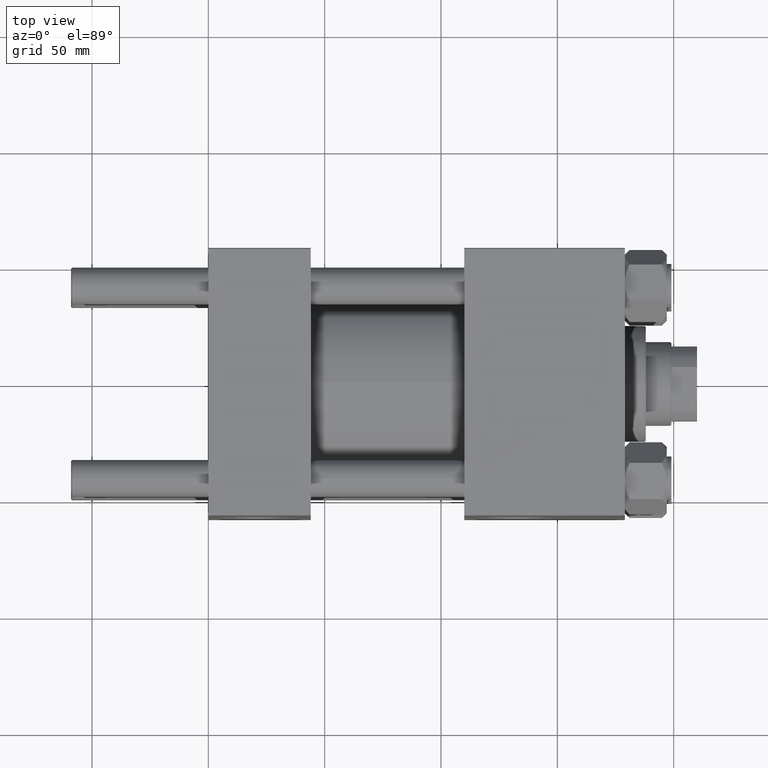
[diagram: clean part render]
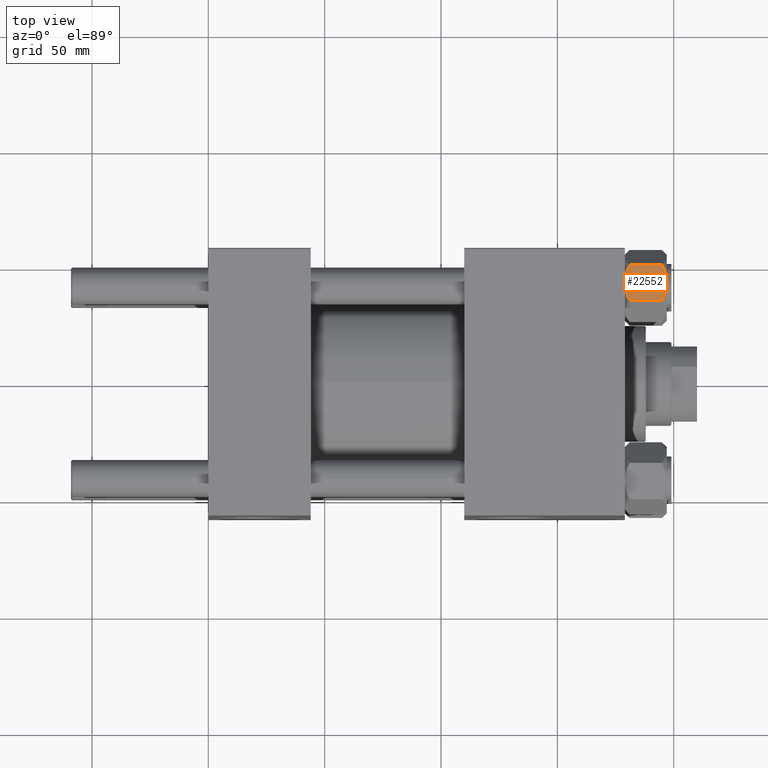
[diagram: same view with one face highlighted and labeled with its STEP entity id]
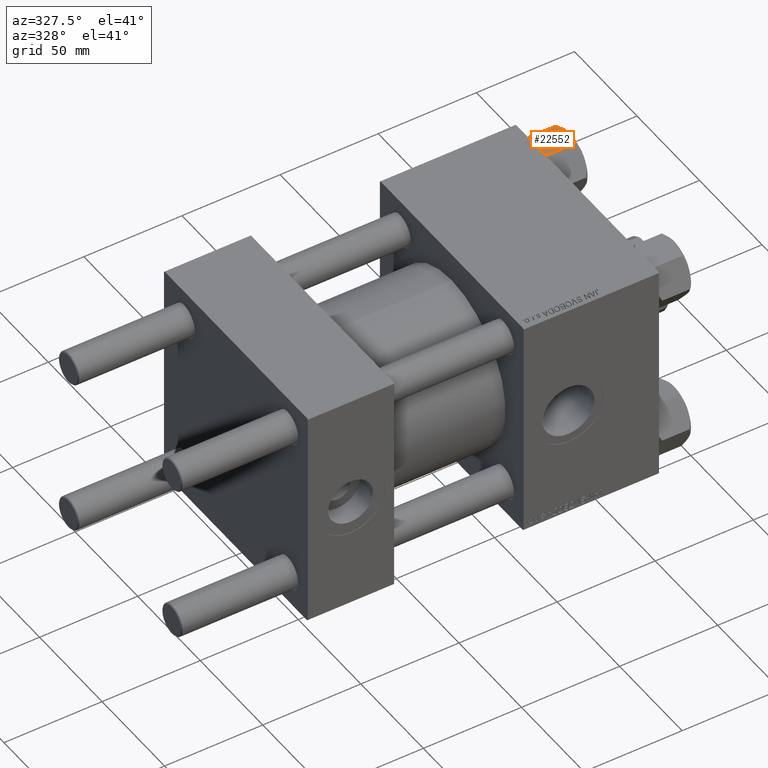
[diagram: same view with one face highlighted and labeled with its STEP entity id]
A machine part, top view. The second image highlights one B-rep face of the part: STEP entity #22552.
A second angle (auxiliary view) of the same face is appended — the face is thin or edge-on in the first view.
In plain terms, the highlighted planar face has unit normal (0, -0.097, -0.9953).
Its self-contained STEP definition (entity closure, byte-faithful):
#637 = CARTESIAN_POINT ( 'NONE',  ( -10.38662926516872531, 9.064464007571846338, -0.2430846701012981670 ) ) ;
#1108 = CARTESIAN_POINT ( 'NONE',  ( -7.810000000000002274, 13.52731680711293549, -18.00000000000000000 ) ) ;
#1386 = CARTESIAN_POINT ( 'NONE',  ( -13.02784502466562877, 4.489744118371585380, -0.1971866459924576653 ) ) ;
#2362 = CARTESIAN_POINT ( 'NONE',  ( -7.903528262322684128, 13.36532110482642111, -2.000000000000000000 ) ) ;
#2661 = CARTESIAN_POINT ( 'NONE',  ( -11.71500000000000341, 6.763658403556464194, 0.000000000000000000 ) ) ;
#3029 = VERTEX_POINT ( 'NONE', #3490 ) ;
#3136 = ORIENTED_EDGE ( 'NONE', *, *, #11314, .F. ) ;
#3490 = CARTESIAN_POINT ( 'NONE',  ( -7.810000000000002274, 13.52731680711293549, -1.999999999999998224 ) ) ;
#3511 = ORIENTED_EDGE ( 'NONE', *, *, #14093, .F. ) ;
#3556 = DIRECTION ( 'NONE',  ( 0.4999999999999998335, 0.8660254037844387076, 0.000000000000000000 ) ) ;
#3804 = CARTESIAN_POINT ( 'NONE',  ( -11.71500000000000341, 6.763658403556464194, -18.00000000000000000 ) ) ;
#5106 = LINE ( 'NONE', #9972, #21332 ) ;
#5777 = LINE ( 'NONE', #36895, #22361 ) ;
#6284 = DIRECTION ( 'NONE',  ( 0.4999999999999998335, 0.8660254037844387076, 0.000000000000000000 ) ) ;
#6472 = B_SPLINE_CURVE_WITH_KNOTS ( 'NONE', 3,
 ( #27209, #7817, #11405, #35835, #637, #23378, #27459, #34851 ),
 .UNSPECIFIED., .F., .F.,
 ( 4, 2, 2, 4 ),
 ( 4.472842641915697111E-07, 0.003945636373369306588, 0.005918230917921864405, 0.007890825462474420487 ),
 .UNSPECIFIED. ) ;
#7641 = PLANE ( 'NONE',  #46586 ) ;
#7817 = CARTESIAN_POINT ( 'NONE',  ( -8.502393313253762130, 12.32805640973647954, -1.411989271640067711 ) ) ;
#8779 = ORIENTED_EDGE ( 'NONE', *, *, #19862, .T. ) ;
#9041 = ORIENTED_EDGE ( 'NONE', *, *, #21708, .F. ) ;
#9305 = ORIENTED_EDGE ( 'NONE', *, *, #44610, .F. ) ;
#9415 = CARTESIAN_POINT ( 'NONE',  ( -7.903528262322684128, 13.36532110482642111, -16.00000000000000000 ) ) ;
#9972 = CARTESIAN_POINT ( 'NONE',  ( -15.62000000000000277, -9.678749765951853952E-16, -16.00000000000000000 ) ) ;
#10000 = LINE ( 'NONE', #24533, #29645 ) ;
#11314 = EDGE_CURVE ( 'NONE', #23517, #37391, #5777, .T. ) ;
#11405 = CARTESIAN_POINT ( 'NONE',  ( -9.114548888011791306, 11.26777185211903110, -0.9142282604026947812 ) ) ;
#11484 = VECTOR ( 'NONE', #14508, 1000.000000000000000 ) ;
#12701 = CARTESIAN_POINT ( 'NONE',  ( -11.71500000000000341, 6.763658403556464194, -18.00000000000000000 ) ) ;
#13705 = VERTEX_POINT ( 'NONE', #30287 ) ;
#13726 = CARTESIAN_POINT ( 'NONE',  ( -8.506059550806625680, 12.32170630002229395, -16.56553707812499354 ) ) ;
#14093 = EDGE_CURVE ( 'NONE', #29388, #32160, #22587, .T. ) ;
#14316 = CARTESIAN_POINT ( 'NONE',  ( -12.04818928091285635, 6.186557640478059561, -17.99999999999999289 ) ) ;
#14508 = DIRECTION ( 'NONE',  ( -0.000000000000000000, -0.000000000000000000, 1.000000000000000000 ) ) ;
#14978 = LINE ( 'NONE', #22622, #41082 ) ;
#16469 = CARTESIAN_POINT ( 'NONE',  ( -14.30591678195076000, 2.276058899034898886, -0.9473872146228137225 ) ) ;
#16781 = CARTESIAN_POINT ( 'NONE',  ( -11.05297796109638675, 7.910314210667877433, -18.00000000000000000 ) ) ;
#18405 = CARTESIAN_POINT ( 'NONE',  ( -13.36540581434587338, 3.905071680002323742, -17.61639331488793303 ) ) ;
#18565 = DIRECTION ( 'NONE',  ( -0.4999999999999998335, -0.8660254037844387076, 0.000000000000000000 ) ) ;
#18593 = LINE ( 'NONE', #37693, #11484 ) ;
#19862 = EDGE_CURVE ( 'NONE', #13705, #32475, #18593, .T. ) ;
#20010 = ORIENTED_EDGE ( 'NONE', *, *, #31578, .F. ) ;
#21065 = CARTESIAN_POINT ( 'NONE',  ( -12.37702203890362895, 5.617002596445053619, -7.928228386300251174E-16 ) ) ;
#21332 = VECTOR ( 'NONE', #36221, 1000.000000000000000 ) ;
#21708 = EDGE_CURVE ( 'NONE', #13705, #29388, #5106, .T. ) ;
#22214 = FACE_OUTER_BOUND ( 'NONE', #28024, .T. ) ;
#22361 = VECTOR ( 'NONE', #6284, 1000.000000000000000 ) ;
#22552 = ADVANCED_FACE ( 'NONE', ( #22214 ), #7641, .F. ) ;
#22587 = B_SPLINE_CURVE_WITH_KNOTS ( 'NONE', 3,
 ( #45918, #50240, #34424, #18405, #26031, #34166, #14316, #3804 ),
 .UNSPECIFIED., .F., .F.,
 ( 4, 2, 2, 4 ),
 ( 4.472842641949058562E-07, 0.003945636373369310924, 0.005918230917921867007, 0.007890825462474422222 ),
 .UNSPECIFIED. ) ;
#22622 = CARTESIAN_POINT ( 'NONE',  ( -15.62000000000000277, -9.678749765951853952E-16, -1.999999999999998224 ) ) ;
#23378 = CARTESIAN_POINT ( 'NONE',  ( -11.04378428799595291, 7.926238119586001218, -0.05089381635301579859 ) ) ;
#23517 = VERTEX_POINT ( 'NONE', #9415 ) ;
#24533 = CARTESIAN_POINT ( 'NONE',  ( -15.62000000000000277, -9.678749765951853952E-16, -1.999999999999998224 ) ) ;
#26031 = CARTESIAN_POINT ( 'NONE',  ( -13.04337073483127973, 4.462852799541082938, -17.75691532989869614 ) ) ;
#26625 = VECTOR ( 'NONE', #28674, 1000.000000000000000 ) ;
#27209 = CARTESIAN_POINT ( 'NONE',  ( -7.903528262322684128, 13.36532110482642111, -2.000000000000000000 ) ) ;
#27459 = CARTESIAN_POINT ( 'NONE',  ( -11.38181071908714870, 7.340759166634867938, -9.266540442962045709E-16 ) ) ;
#28024 = EDGE_LOOP ( 'NONE', ( #9041, #8779, #20010, #31900, #48054, #30228, #36055, #3136, #9305, #3511 ) ) ;
#28241 = CARTESIAN_POINT ( 'NONE',  ( -9.124083218049246824, 11.25125790807802950, -17.05261278537718539 ) ) ;
#28674 = DIRECTION ( 'NONE',  ( -0.000000000000000000, -0.000000000000000000, 1.000000000000000000 ) ) ;
#29251 = CARTESIAN_POINT ( 'NONE',  ( -8.202637790192651934, 12.84724820552770197, -16.29368822085855584 ) ) ;
#29388 = VERTEX_POINT ( 'NONE', #41711 ) ;
#29645 = VECTOR ( 'NONE', #48257, 1000.000000000000000 ) ;
#29845 = DIRECTION ( 'NONE',  ( 0.8660254037844387076, -0.4999999999999998335, 0.000000000000000000 ) ) ;
#30228 = ORIENTED_EDGE ( 'NONE', *, *, #30822, .F. ) ;
#30287 = CARTESIAN_POINT ( 'NONE',  ( -15.62000000000000277, -9.678749765951853952E-16, -16.00000000000000000 ) ) ;
#30822 = EDGE_CURVE ( 'NONE', #3029, #35304, #10000, .T. ) ;
#31578 = EDGE_CURVE ( 'NONE', #45893, #32475, #14978, .T. ) ;
#31900 = ORIENTED_EDGE ( 'NONE', *, *, #48052, .F. ) ;
#31995 = CARTESIAN_POINT ( 'NONE',  ( -14.92394044919337759, 1.205610507090636219, -1.434462921875002683 ) ) ;
#32160 = VERTEX_POINT ( 'NONE', #33899 ) ;
#32475 = VERTEX_POINT ( 'NONE', #43000 ) ;
#32560 = CARTESIAN_POINT ( 'NONE',  ( -7.903528262322684128, 13.36532110482642111, -16.00000000000000000 ) ) ;
#32769 = CARTESIAN_POINT ( 'NONE',  ( -15.52647173767732269, 0.1619957022865083085, -2.000000000000000000 ) ) ;
#33899 = CARTESIAN_POINT ( 'NONE',  ( -11.71500000000000341, 6.763658403556464194, -18.00000000000000000 ) ) ;
#34166 = CARTESIAN_POINT ( 'NONE',  ( -12.38621571200405569, 5.601078687526927169, -17.94910618364698252 ) ) ;
#34424 = CARTESIAN_POINT ( 'NONE',  ( -14.31545111198821374, 2.259544954993896848, -17.08577173959729834 ) ) ;
#34851 = CARTESIAN_POINT ( 'NONE',  ( -11.71500000000000341, 6.763658403556464194, 0.000000000000000000 ) ) ;
#35304 = VERTEX_POINT ( 'NONE', #2362 ) ;
#35828 = CARTESIAN_POINT ( 'NONE',  ( -11.71500000000000341, 6.763658403556464194, 0.000000000000000000 ) ) ;
#35835 = CARTESIAN_POINT ( 'NONE',  ( -10.06459418565412811, 9.622245127110607754, -0.3836066851120605858 ) ) ;
#36055 = ORIENTED_EDGE ( 'NONE', *, *, #41558, .F. ) ;
#36221 = DIRECTION ( 'NONE',  ( 0.4999999999999998335, 0.8660254037844387076, 0.000000000000000000 ) ) ;
#36650 = CARTESIAN_POINT ( 'NONE',  ( -10.40215497533437627, 9.037572688741338567, -17.80281335400754372 ) ) ;
#36895 = CARTESIAN_POINT ( 'NONE',  ( -15.62000000000000277, -9.678749765951853952E-16, -16.00000000000000000 ) ) ;
#37391 = VERTEX_POINT ( 'NONE', #38710 ) ;
#37693 = CARTESIAN_POINT ( 'NONE',  ( -15.62000000000000277, -9.678749765951853952E-16, -18.00000000000000000 ) ) ;
#38710 = CARTESIAN_POINT ( 'NONE',  ( -7.810000000000002274, 13.52731680711293549, -16.00000000000000000 ) ) ;
#39668 = CARTESIAN_POINT ( 'NONE',  ( -13.99051971937273642, 2.822342635978010161, -0.7317196846281152078 ) ) ;
#39969 = CARTESIAN_POINT ( 'NONE',  ( -9.439480280627265074, 10.70497417113491601, -17.26828031537188579 ) ) ;
#41082 = VECTOR ( 'NONE', #18565, 1000.000000000000000 ) ;
#41369 = B_SPLINE_CURVE_WITH_KNOTS ( 'NONE', 3,
 ( #35828, #21065, #1386, #39668, #16469, #31995, #47565, #32769 ),
 .UNSPECIFIED., .F., .F.,
 ( 4, 2, 2, 4 ),
 ( 0.007890825462474420487, 0.01181022244528553283, 0.01376992093669108727, 0.01572961942809664171 ),
 .UNSPECIFIED. ) ;
#41558 = EDGE_CURVE ( 'NONE', #37391, #3029, #43228, .T. ) ;
#41711 = CARTESIAN_POINT ( 'NONE',  ( -15.52647173767732269, 0.1619957022865083085, -16.00000000000000000 ) ) ;
#42696 = CARTESIAN_POINT ( 'NONE',  ( -15.52647173767732269, 0.1619957022865083085, -2.000000000000000000 ) ) ;
#43000 = CARTESIAN_POINT ( 'NONE',  ( -15.62000000000000277, -9.678749765951853952E-16, -1.999999999999998224 ) ) ;
#43228 = LINE ( 'NONE', #1108, #26625 ) ;
#44610 = EDGE_CURVE ( 'NONE', #32160, #23517, #46149, .T. ) ;
#45549 = EDGE_CURVE ( 'NONE', #35304, #45752, #6472, .T. ) ;
#45752 = VERTEX_POINT ( 'NONE', #2661 ) ;
#45893 = VERTEX_POINT ( 'NONE', #42696 ) ;
#45918 = CARTESIAN_POINT ( 'NONE',  ( -15.52647173767732269, 0.1619957022865083085, -16.00000000000000000 ) ) ;
#46149 = B_SPLINE_CURVE_WITH_KNOTS ( 'NONE', 3,
 ( #12701, #16781, #36650, #39969, #28241, #13726, #29251, #32560 ),
 .UNSPECIFIED., .F., .F.,
 ( 4, 2, 2, 4 ),
 ( 0.007890825462474422222, 0.01181022244528553283, 0.01376992093669108727, 0.01572961942809664518 ),
 .UNSPECIFIED. ) ;
#46586 = AXIS2_PLACEMENT_3D ( 'NONE', #49998, #29845, #3556 ) ;
#47565 = CARTESIAN_POINT ( 'NONE',  ( -15.22736220980735489, 0.6800686015852296373, -1.706311779141443496 ) ) ;
#48052 = EDGE_CURVE ( 'NONE', #45752, #45893, #41369, .T. ) ;
#48054 = ORIENTED_EDGE ( 'NONE', *, *, #45549, .F. ) ;
#48257 = DIRECTION ( 'NONE',  ( -0.4999999999999998335, -0.8660254037844387076, 0.000000000000000000 ) ) ;
#49998 = CARTESIAN_POINT ( 'NONE',  ( -15.62000000000000277, -9.678749765951853952E-16, -18.00000000000000000 ) ) ;
#50240 = CARTESIAN_POINT ( 'NONE',  ( -14.92760668674625180, 1.199260397376455067, -16.58801072835993295 ) ) ;